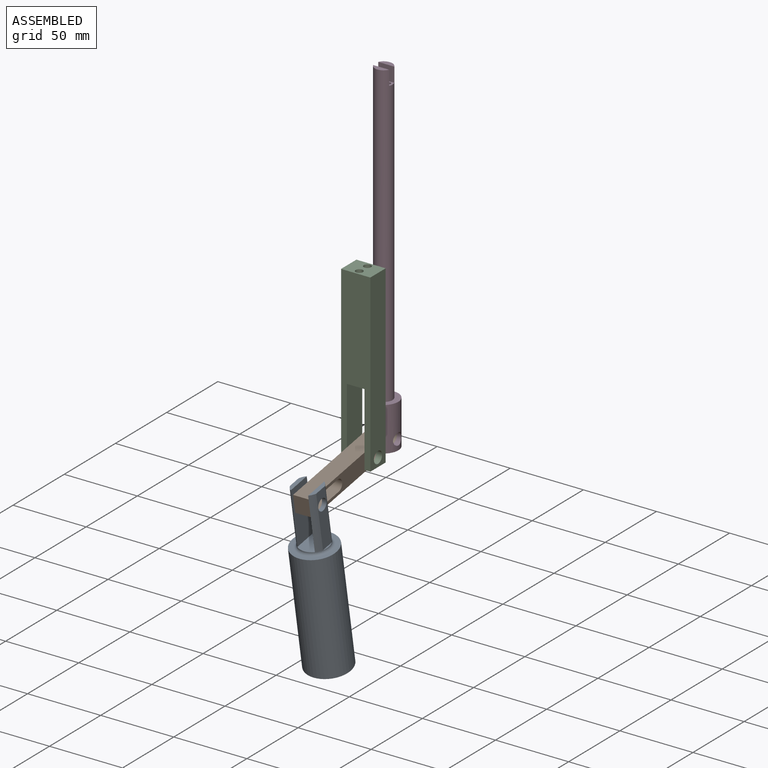
[diagram: assembled view]
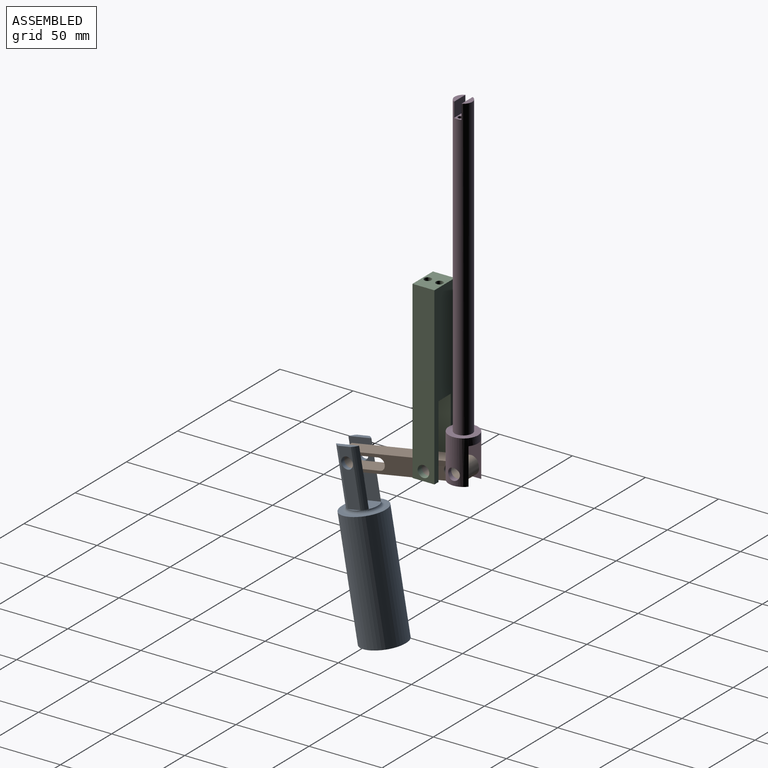
[diagram: assembled view, second angle]
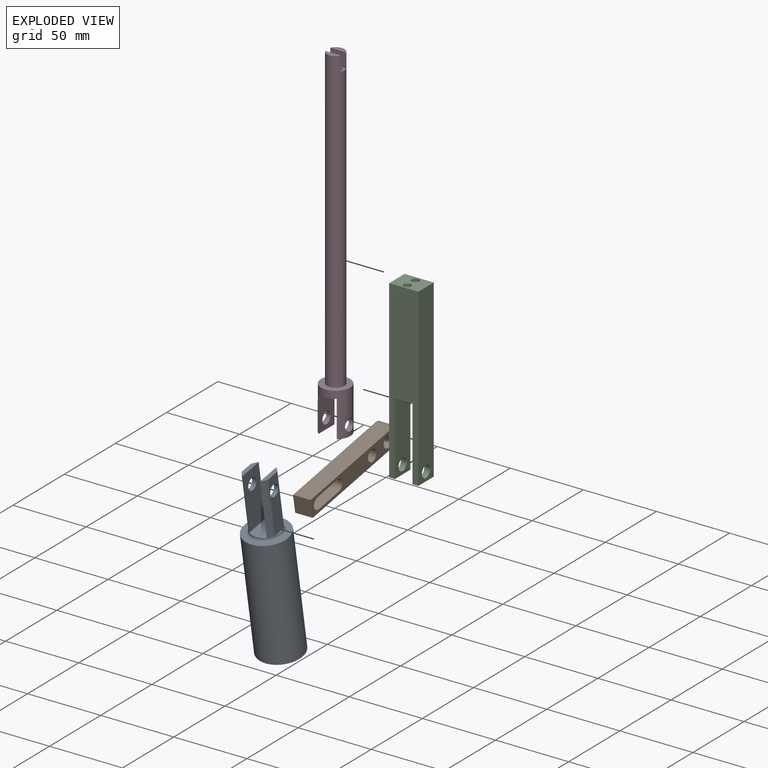
[diagram: exploded view]
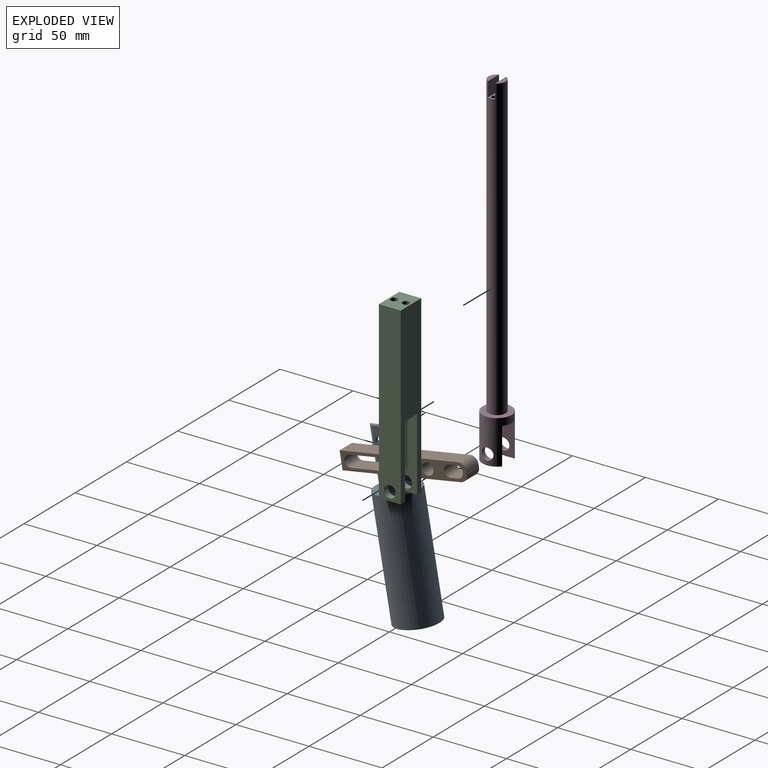
[diagram: exploded view, second angle]
ASSEMBLY  parts=4 mates=3
PART A: 19 faces, bbox 30x30x120 mm
  f0: plane 8.72x1mm, normal (0,0,1), area 5.9mm2, adj f3,f14
  f1: plane 8.72x1mm, normal (0,0,1), area 5.9mm2, adj f2,f14
  f2: plane 38x8.72mm, normal (0,1,0), area 281mm2, adj f1,f10,f11,f13,f16
  f3: plane 38x8.72mm, normal (0,-1,0), area 281mm2, adj f0,f7,f8,f9,f12
  f4: plane 20x12mm, normal (0,0,1), area 224.7mm2, adj f5,f6,f14
  f5: plane 38x16mm, normal (0,1,0), area 557.7mm2, adj f4,f7,f8,f9,f12
  f6: plane 38x16mm, normal (0,-1,0), area 557.7mm2, adj f4,f10,f11,f13,f16
  f7: plane 16x3mm, normal (0,0,1), area 38.9mm2, adj f3,f5,f8,f9
  f8: cylinder r=10mm len=38mm, axis (0,0,1), area 181mm2, adj f3,f5,f7,f14
  f9: cylinder r=10mm len=38mm, axis (0,0,1), area 181mm2, adj f3,f5,f7,f14
  f10: cylinder r=10mm len=38mm, axis (0,0,1), area 181mm2, adj f2,f6,f14,f16
  f11: cylinder r=10mm len=38mm, axis (0,0,1), area 181mm2, adj f2,f6,f14,f16
  f12: cylinder r=4mm len=8mm, axis (0,1,0), area 75.4mm2, adj f3,f5
  f13: cylinder r=4mm len=8mm, axis (0,1,0), area 75.4mm2, adj f2,f6
  f14: torus R=12mm, axis (0,0,-1), area 211.7mm2, adj f0,f1,f4,f8,f9,f10,f11,f15
  f15: plane 30x30mm, normal (0,0,1), area 254.5mm2, adj f14,f17
  f16: plane 16x3mm, normal (0,0,1), area 38.9mm2, adj f2,f6,f10,f11
  f17: cylinder r=15mm len=80mm, axis (0,0,1), area 7539.8mm2, adj f15,f18
  f18: plane 30x30mm, normal (0,0,-1), area 706.9mm2, adj f17
PART B: 17 faces, bbox 87x12x12 mm
  f0: cylinder r=5mm len=12mm, axis (0,0,-1), area 94.2mm2, adj f1,f2,f5,f6
  f1: plane 82x12mm, normal (0,-1,0), area 984mm2, adj f0,f2,f6,f16
  f2: plane 87x12mm, normal (0,0,-1), area 682.5mm2, adj f0,f1,f3,f4,f5,f7,f8,f9
  f3: cylinder r=5mm len=12mm, axis (0,0,1), area 94.2mm2, adj f2,f4,f5,f6
  f4: plane 82x12mm, normal (0,1,0), area 984mm2, adj f2,f3,f6,f16
  f5: plane 12x2mm, normal (-1,0,0), area 24mm2, adj f0,f2,f3,f6
  f6: plane 87x12mm, normal (0,0,1), area 682.5mm2, adj f0,f1,f3,f4,f5,f7,f8,f9
  f7: cylinder r=4mm len=12mm, axis (0,0,-1), area 150.8mm2, adj f2,f6,f8,f10
  f8: plane 12x5mm, normal (0,-1,0), area 60mm2, adj f2,f6,f7,f9
  f9: cylinder r=4mm len=12mm, axis (0,0,-1), area 150.8mm2, adj f2,f6,f8,f10
  f10: plane 12x5mm, normal (0,1,0), area 60mm2, adj f2,f6,f7,f9
  f11: cylinder r=4mm len=12mm, axis (0,0,-1), area 150.8mm2, adj f2,f6,f12,f14
  f12: plane 20x12mm, normal (0,1,0), area 240mm2, adj f2,f6,f11,f13
  f13: cylinder r=4mm len=12mm, axis (0,0,-1), area 150.8mm2, adj f2,f6,f12,f14
  f14: plane 20x12mm, normal (0,-1,0), area 240mm2, adj f2,f6,f11,f13
  f15: cylinder r=4mm len=12mm, axis (0,0,1), area 301.6mm2, adj f2,f6
  f16: plane 12x12mm, normal (1,0,0), area 144mm2, adj f1,f2,f4,f6
PART C: 14 faces, bbox 20x120x15 mm
  f0: cylinder r=4mm len=8mm, axis (-1,0,0), area 100.5mm2, adj f5,f11
  f1: cylinder r=4mm len=8mm, axis (-1,0,0), area 100.5mm2, adj f4,f9
  f2: cylinder r=2.46mm len=70mm, axis (0,1,0), area 1081.3mm2, adj f6,f10
  f3: cylinder r=2.46mm len=70mm, axis (0,1,0), area 1081.3mm2, adj f6,f10
  f4: plane 50x15mm, normal (1,0,0), area 699.7mm2, adj f1,f6,f7,f8,f13
  f5: plane 50x15mm, normal (-1,0,0), area 699.7mm2, adj f0,f6,f7,f12,f13
  f6: plane 15x12mm, normal (0,-1,0), area 142mm2, adj f2,f3,f4,f5,f7,f13
  f7: plane 120x20mm, normal (0,0,-1), area 1800mm2, adj f4,f5,f6,f8,f9,f10,f11,f12
  f8: plane 15x4mm, normal (0,-1,0), area 60mm2, adj f4,f7,f9,f13
  f9: plane 120x15mm, normal (-1,0,0), area 1749.7mm2, adj f1,f7,f8,f10,f13
  f10: plane 20x15mm, normal (0,1,0), area 262mm2, adj f2,f3,f7,f9,f11,f13
  f11: plane 120x15mm, normal (1,0,0), area 1749.7mm2, adj f0,f7,f10,f12,f13
  f12: plane 15x4mm, normal (0,-1,0), area 60mm2, adj f5,f7,f11,f13
  f13: plane 120x20mm, normal (0,0,1), area 1800mm2, adj f4,f5,f6,f8,f9,f10,f11,f12
PART D: 19 faces, bbox 20x20x235 mm
  f0: cone r=0.81mm half-angle=59deg, axis (0,0,1), area 9.6mm2, adj f1
  f1: cylinder r=1.62mm len=13.8mm, axis (0,0,1), area 140.6mm2, adj f0,f6
  f2: cone r=0.81mm half-angle=59deg, axis (0,0,1), area 9.6mm2, adj f3
  f3: cylinder r=1.62mm len=13.8mm, axis (0,0,1), area 140.6mm2, adj f2,f6
  f4: plane 10.91x10mm, normal (1,0,0), area 109.1mm2, adj f6,f8,f18
  f5: plane 10.91x10mm, normal (-1,0,0), area 109.1mm2, adj f6,f7,f18
  f6: plane 12x5mm, normal (0,0,1), area 41.7mm2, adj f1,f3,f4,f5,f18
  f7: plane 10.91x3.5mm, normal (0,0,1), area 27.4mm2, adj f5,f18
  f8: plane 10.91x3.5mm, normal (0,0,1), area 27.4mm2, adj f4,f18
  f9: cylinder r=4mm len=8mm, axis (0,1,0), area 73.3mm2, adj f13,f14
  f10: cylinder r=4mm len=8mm, axis (0,1,0), area 73.3mm2, adj f12,f14
  f11: plane 20x12.5mm, normal (0,0,-1), area 232.6mm2, adj f12,f13,f14
  f12: plane 25x15.61mm, normal (0,1,0), area 340mm2, adj f10,f11,f14,f15
  f13: plane 25x15.61mm, normal (0,-1,0), area 340mm2, adj f9,f11,f14,f17
  f14: cylinder r=10mm len=30mm, axis (0,0,-1), area 1106.3mm2, adj f9,f10,f11,f12,f13,f15,f16,f17
  f15: plane 15.61x3.75mm, normal (0,0,-1), area 40.8mm2, adj f12,f14
  f16: plane 20x20mm, normal (0,0,1), area 201.1mm2, adj f14,f18
  f17: plane 15.61x3.75mm, normal (0,0,-1), area 40.8mm2, adj f13,f14
  f18: cylinder r=6mm len=205mm, axis (0,0,1), area 7625.2mm2, adj f4,f5,f6,f7,f8,f16
PLACE A rot(axis=(0.09,0.09,-0.99),90.4deg) t=(25.82,14.52,-171.77)mm
PLACE B rot(axis=(0.61,-0.51,-0.61),125.9deg) t=(31.82,88.77,-53.08)mm
PLACE C rot(axis=(1,0,0),90deg) t=(15.82,55.83,-60.11)mm fixed
PLACE D rot(axis=(0,0,-1),90deg) t=(25.57,68.52,-27.55)mm
MATE cylindrical B.f9 <-> D.f9  axis (1,0,0) through (31.82,68.52,-50.55)mm
MATE cylindrical A.f12 <-> B.f13  axis (1,0,0) through (19.82,-4.59,-63.44)mm
MATE cylindrical B.f15 <-> C.f0  axis (-1,0,0) through (31.82,48.33,-54.11)mm
